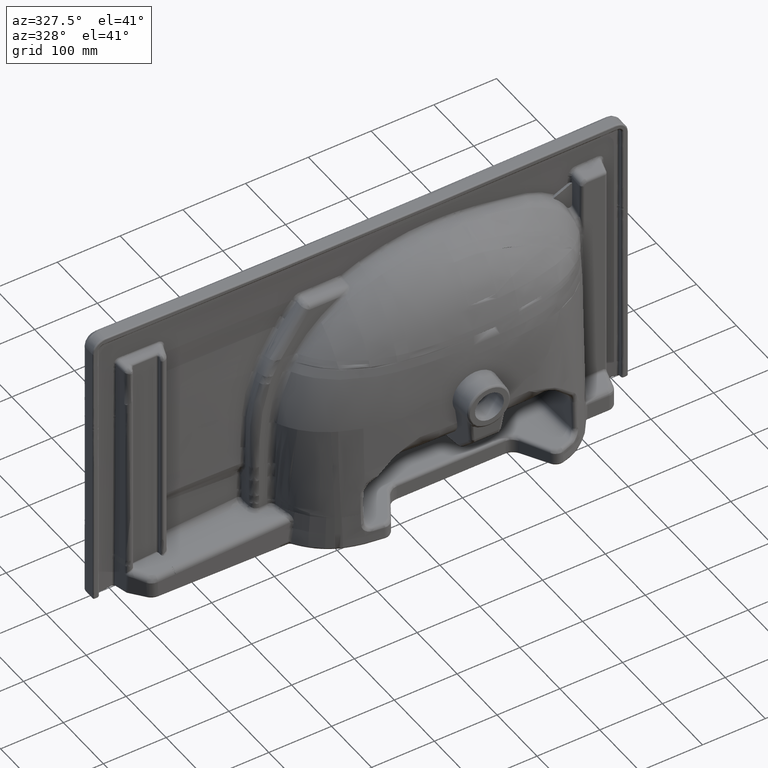
[diagram: clean part render]
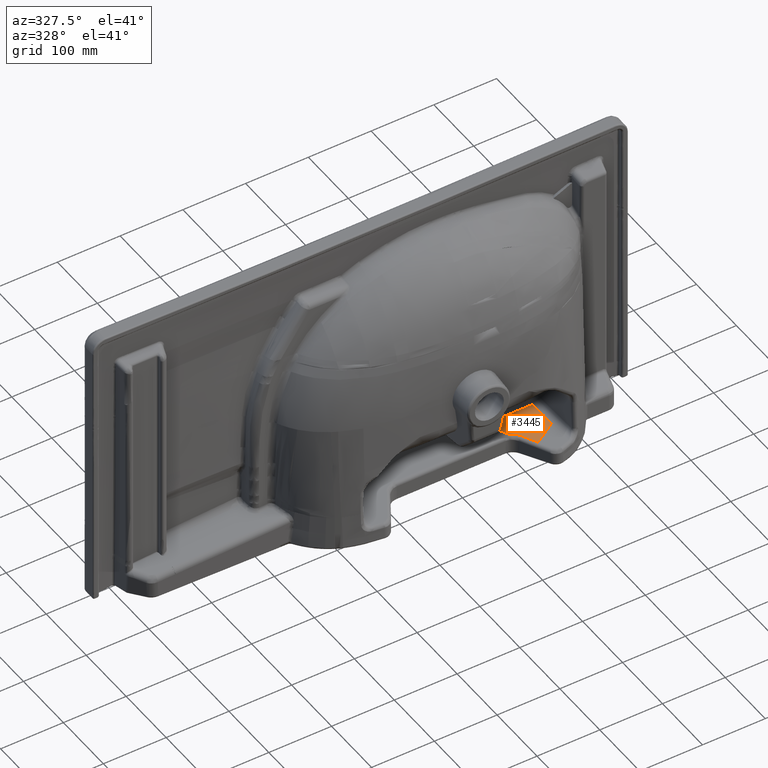
[diagram: same view with one face highlighted and labeled with its STEP entity id]
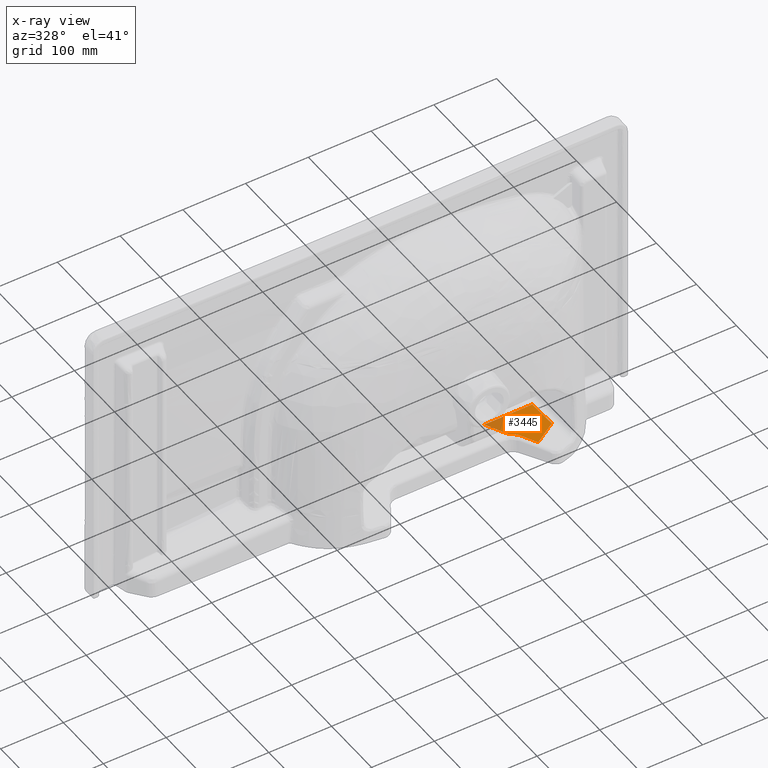
[diagram: x-ray of the same camera — body ghosted, the highlighted face saturated]
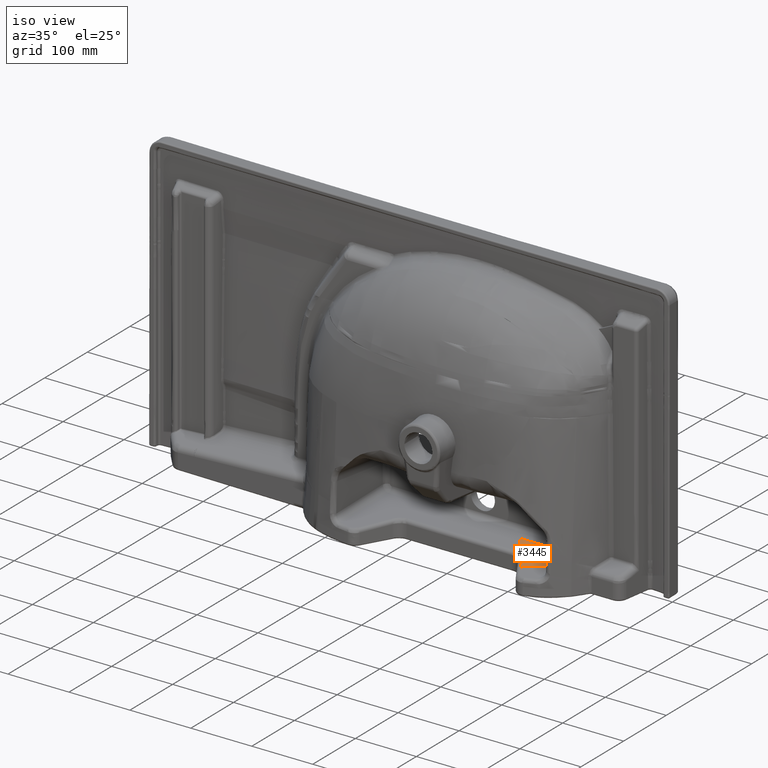
[diagram: same view with one face highlighted and labeled with its STEP entity id]
A machine part, auxiliary view. The second image highlights one B-rep face of the part: STEP entity #3445.
The next image is the same camera in x-ray: the body ghosted, the highlighted face saturated — about 10% of this face is hidden behind the body in this view.
A second angle (iso view) of the same face is appended — the face is thin or edge-on in the first view.
In plain terms, the highlighted planar face has unit normal (0, 0.0872, -0.9962).
Its self-contained STEP definition (entity closure, byte-faithful):
#415=ELLIPSE('',#20868,24.66385340844,24.57);
#638=PLANE('',#20888);
#827=LINE('',#32264,#1554);
#1225=LINE('',#90167,#1956);
#1229=LINE('',#90366,#1960);
#1242=LINE('',#91050,#1973);
#1243=LINE('',#91051,#1974);
#1554=VECTOR('',#21314,1.);
#1956=VECTOR('',#22728,1.);
#1960=VECTOR('',#22754,1.);
#1973=VECTOR('',#22789,1.);
#1974=VECTOR('',#22790,1.);
#3445=ADVANCED_FACE('',(#5162),#638,.F.);
#5162=FACE_OUTER_BOUND('',#6476,.T.);
#6476=EDGE_LOOP('',(#11065,#11066,#11067,#11068,#11069,#11070));
#11065=ORIENTED_EDGE('',*,*,#17215,.T.);
#11066=ORIENTED_EDGE('',*,*,#17269,.T.);
#11067=ORIENTED_EDGE('',*,*,#15495,.F.);
#11068=ORIENTED_EDGE('',*,*,#17270,.T.);
#11069=ORIENTED_EDGE('',*,*,#17239,.F.);
#11070=ORIENTED_EDGE('',*,*,#17217,.T.);
#13648=VERTEX_POINT('',#32243);
#13653=VERTEX_POINT('',#32265);
#14634=VERTEX_POINT('',#90059);
#14641=VERTEX_POINT('',#90166);
#14642=VERTEX_POINT('',#90168);
#14656=VERTEX_POINT('',#90367);
#15495=EDGE_CURVE('',#13648,#13653,#827,.T.);
#17215=EDGE_CURVE('',#14642,#14641,#1225,.T.);
#17217=EDGE_CURVE('',#14634,#14642,#415,.T.);
#17239=EDGE_CURVE('',#14634,#14656,#1229,.T.);
#17269=EDGE_CURVE('',#14641,#13653,#1242,.T.);
#17270=EDGE_CURVE('',#13648,#14656,#1243,.T.);
#20868=AXIS2_PLACEMENT_3D('',#90171,#22733,#22734);
#20888=AXIS2_PLACEMENT_3D('',#91052,#22791,#22792);
#21314=DIRECTION('',(0.0868265938642431,0.0868265938642482,-0.992432509138968));
#22728=DIRECTION('',(0.519312722294148,0.0744819279106961,-0.85133233162975));
#22733=DIRECTION('',(0.,0.996194698091746,0.0871557427476588));
#22734=DIRECTION('',(4.66291099011837E-017,-0.0871557427476588,0.996194698091746));
#22754=DIRECTION('',(-0.519312722294148,-0.0744819279106961,0.85133233162975));
#22789=DIRECTION('',(0.854584282831973,-0.0452610860298554,0.517336580601025));
#22790=DIRECTION('',(-1.,0.,0.));
#22791=DIRECTION('',(0.,0.996194698091746,0.0871557427476588));
#22792=DIRECTION('',(0.,-0.0871557427476588,0.996194698091746));
#32243=CARTESIAN_POINT('',(152.160883349887,38.7193318935709,-35.3007213941569));
#32264=CARTESIAN_POINT('',(150.363120603354,36.9215691470379,-14.7521991733289));
#32265=CARTESIAN_POINT('',(155.906860761308,42.4653093049922,-78.1174391316646));
#90059=CARTESIAN_POINT('',(94.778838176112,41.5169671997526,-67.2778392678647));
#90166=CARTESIAN_POINT('',(120.723485392362,44.3287156551738,-99.4162711755382));
#90167=CARTESIAN_POINT('',(114.206566465916,43.3940328237287,-88.7327975256267));
#90168=CARTESIAN_POINT('',(107.411230383087,42.4194182793086,-77.5929023078735));
#90171=CARTESIAN_POINT('',(86.4357326885214,43.5388404179627,-90.3879559015586));
#90366=CARTESIAN_POINT('',(50.7752427846387,35.2057938372353,4.85920235750149));
#90367=CARTESIAN_POINT('',(75.2727962731503,38.7193318935709,-35.3007213941569));
#91050=CARTESIAN_POINT('',(-106.628875657437,56.3699092264684,-237.047743483108));
#91051=CARTESIAN_POINT('',(-171.946776822169,38.7193318935709,-35.3007213941569));
#91052=CARTESIAN_POINT('',(-171.946776822169,47.0017520506966,-129.969216983548));